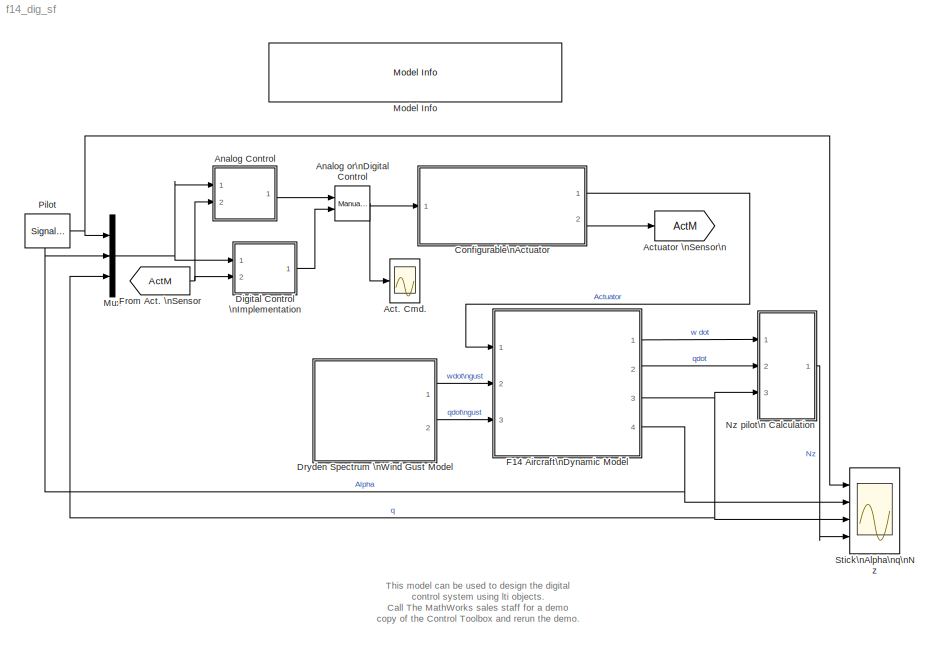
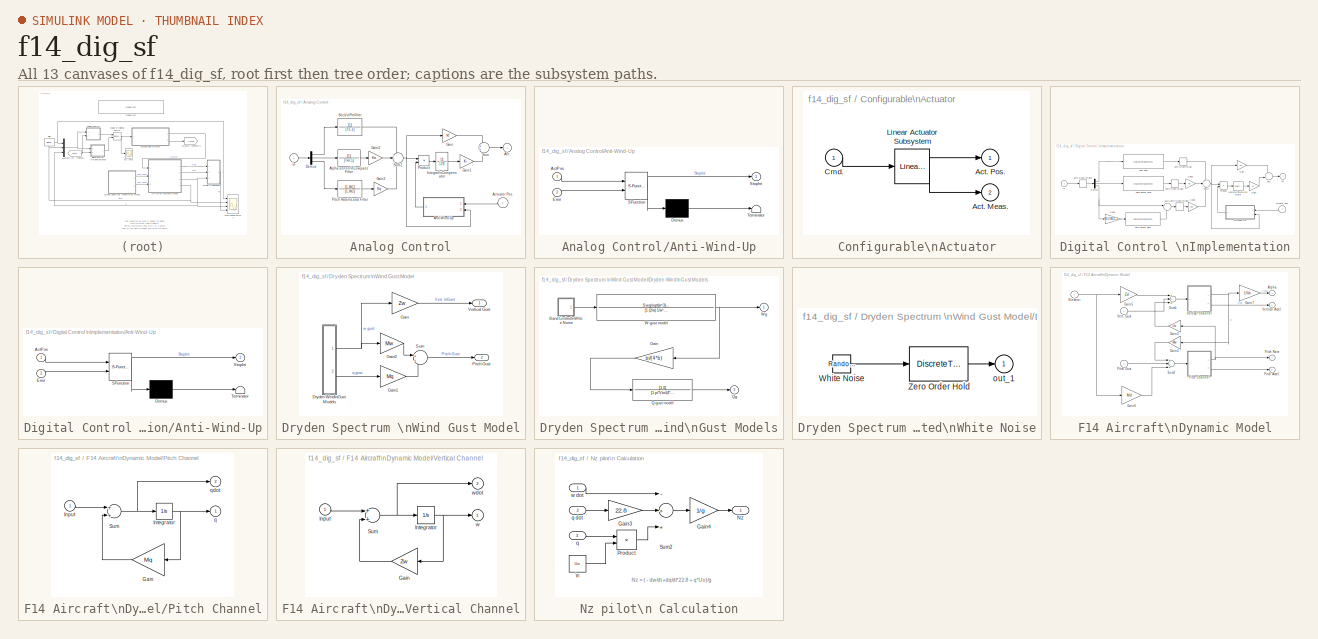
[diagram: thumbnail index - all 13 canvases of the model, root first then tree order]
MODEL f14_dig_sf
KIND model
CONFIG PreLoadFcn = f14dat_digital
BLOCK [Scope] Act. Cmd.
  DataFormat = Array
  LimitDataPoints = off
  NumInputPorts = 1
  Ports = [1]
  TickLabels = on
  TimeRange = 15
  YMax = 2.5
  YMin = -2.5
BLOCK [Goto] Actuator \nSensor\n
  DialogController = Simulink.DDGSource
  GotoTag = ActM
  TagVisibility = local
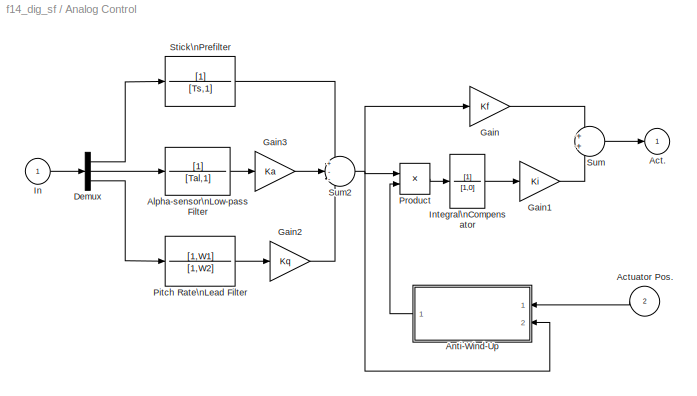
BLOCK [SubSystem] Analog Control
  MinAlgLoopOccurrences = off
  Ports = [2, 1]
  PropExecContextAcrossSSBoundary = on
  RTWSystemCode = Auto
  TreatAsAtomicUnit = off
BLOCK [Outport] Analog Control/Act.
  BusOutputAsStruct = off
  IconDisplay = Port number
  InitialOutput = 0
BLOCK [Inport] Analog Control/Actuator Pos.
  IconDisplay = Port number
  LatchInput = off
  Port = 2
BLOCK [TransferFcn] Analog Control/Alpha-sensor\nLow-pass Filter
  Denominator = [Tal,1]
  MaskIconFrame = on
  MaskIconOpaque = on
  MaskIconRotate = none
  MaskIconUnits = autoscale
BLOCK [SubSystem] Analog Control/Anti-Wind-Up
  MaskDescription = Stateflow diagram
  MaskDisplay = plot(sf('Private','sfblk','xIcon'),sf('Private','sfblk','yIcon'));text(0.5,0,sf('Private', 'sfblk', 'tIcon'),'HorizontalAl','Center','VerticalAl','Bottom');
  MaskIconFrame = off
  MaskIconOpaque = off
  MaskIconRotate = none
  MaskIconUnits = autoscale
  MaskSelfModifiable = on
  MaskType = Stateflow
  MinAlgLoopOccurrences = off
  Ports = [2, 1]
  PropExecContextAcrossSSBoundary = on
  RTWSystemCode = Auto
  TreatAsAtomicUnit = off
BLOCK [Demux] Analog Control/Anti-Wind-Up/ Demux 
  Outputs = 1
  Ports = [1, 1]
BLOCK [S-Function] Analog Control/Anti-Wind-Up/ SFunction 
  FunctionName = sf_sfun
  PortCounts = [2 2]
  Ports = [2, 2]
  Tag = Stateflow S-Function f14_dig_sf 1
BLOCK [Terminator] Analog Control/Anti-Wind-Up/ Terminator 
BLOCK [Inport] Analog Control/Anti-Wind-Up/ActPos
  IconDisplay = Port number
  LatchInput = off
  Port = 1
BLOCK [Inport] Analog Control/Anti-Wind-Up/Error
  IconDisplay = Port number
  LatchInput = off
  Port = 2
BLOCK [Outport] Analog Control/Anti-Wind-Up/StopInt
  BusOutputAsStruct = off
  IconDisplay = Port number
BLOCK [Demux] Analog Control/Demux
  Outputs = 3
  Ports = [1, 3]
BLOCK [Gain] Analog Control/Gain
  Gain = Kf
BLOCK [Gain] Analog Control/Gain1
  Gain = Ki
BLOCK [Gain] Analog Control/Gain2
  Gain = Kq
  MaskIconFrame = on
  MaskIconOpaque = on
  MaskIconRotate = none
  MaskIconUnits = autoscale
BLOCK [Gain] Analog Control/Gain3
  Gain = Ka
  MaskIconFrame = on
  MaskIconOpaque = on
  MaskIconRotate = none
  MaskIconUnits = autoscale
BLOCK [Inport] Analog Control/In
  IconDisplay = Port number
  LatchInput = off
  Port = 1
BLOCK [TransferFcn] Analog Control/Integral\nCompensator
  Denominator = [1,0]
BLOCK [TransferFcn] Analog Control/Pitch Rate\nLead Filter
  Denominator = [1,W2]
  MaskIconFrame = on
  MaskIconOpaque = on
  MaskIconRotate = none
  MaskIconUnits = autoscale
  Numerator = [1,W1]
BLOCK [Product] Analog Control/Product
  Ports = [2, 1]
BLOCK [TransferFcn] Analog Control/Stick\nPrefilter
  Denominator = [Ts,1]
BLOCK [Sum] Analog Control/Sum
  IconShape = round
  Inputs = 2
  Ports = [2, 1]
BLOCK [Sum] Analog Control/Sum2
  IconShape = round
  Inputs = +--
  Ports = [3, 1]
BLOCK [Reference] Analog or\nDigital Control  REF=simulink/Signal\nRouting/Manual Switch
  Ports = [2, 1]
  ShowPortLabels = on
  SourceBlock = simulink/Signal\nRouting/Manual Switch
  SourceType = Manual Switch
  action = 0
  sw = 0
BLOCK [SubSystem] Configurable\nActuator
  BlockChoice = Linear Actuator Subsystem
  MemberBlocks = Linear Actuator Subsystem,Non-Linear Actuator Subsystem
  MinAlgLoopOccurrences = off
  Ports = [1, 2]
  PropExecContextAcrossSSBoundary = on
  RTWSystemCode = Auto
  TemplateBlock = f14actuator/Configurable\nActuator
  TreatAsAtomicUnit = off
BLOCK [Outport] Configurable\nActuator/Act. Meas.
  BusOutputAsStruct = off
  IconDisplay = Port number
  Port = 2
BLOCK [Outport] Configurable\nActuator/Act. Pos.
  BusOutputAsStruct = off
  IconDisplay = Port number
BLOCK [Inport] Configurable\nActuator/Cmd.
  IconDisplay = Port number
  LatchInput = off
  Port = 1
BLOCK [Reference] Configurable\nActuator/Linear Actuator Subsystem  REF=f14actuator/Linear Actuator Subsystem  (lib defined in mdl_813533b40b07)
  Ports = [1, 2]
  ShowPortLabels = on
  SourceBlock = f14actuator/Linear Actuator Subsystem
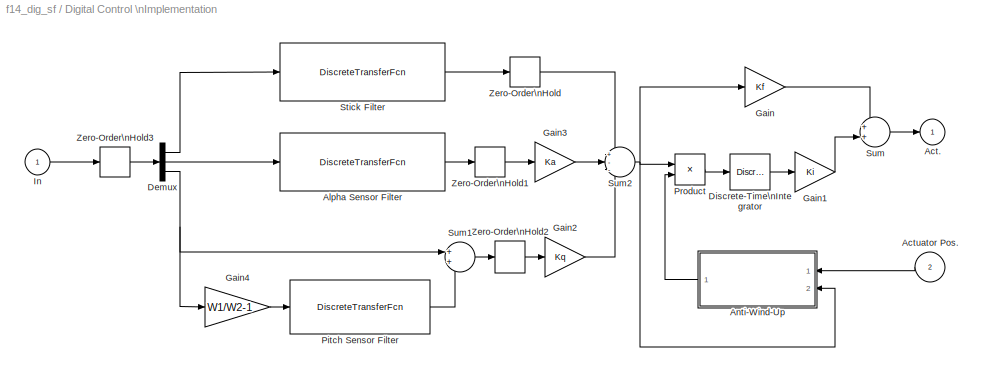
BLOCK [SubSystem] Digital Control \nImplementation
  MinAlgLoopOccurrences = off
  Ports = [2, 1]
  PropExecContextAcrossSSBoundary = on
  RTWSystemCode = Auto
  TreatAsAtomicUnit = off
BLOCK [Outport] Digital Control \nImplementation/Act.
  BusOutputAsStruct = off
  IconDisplay = Port number
  InitialOutput = 0
BLOCK [Inport] Digital Control \nImplementation/Actuator Pos.
  IconDisplay = Port number
  LatchInput = off
  Port = 2
BLOCK [DiscreteTransferFcn] Digital Control \nImplementation/Alpha Sensor Filter
  Denominator = [1 -exp(-deltat1/Tal)]
  Numerator = [1-exp(-deltat1/Tal)]
  SampleTime = deltat1
BLOCK [SubSystem] Digital Control \nImplementation/Anti-Wind-Up
  MaskDescription = Stateflow diagram
  MaskDisplay = plot(sf('Private','sfblk','xIcon'),sf('Private','sfblk','yIcon'));text(0.5,0,sf('Private', 'sfblk', 'tIcon'),'HorizontalAl','Center','VerticalAl','Bottom');
  MaskIconFrame = off
  MaskIconOpaque = off
  MaskIconRotate = none
  MaskIconUnits = autoscale
  MaskSelfModifiable = on
  MaskType = Stateflow
  MinAlgLoopOccurrences = off
  Ports = [2, 1]
  PropExecContextAcrossSSBoundary = on
  RTWSystemCode = Auto
  TreatAsAtomicUnit = off
BLOCK [Demux] Digital Control \nImplementation/Anti-Wind-Up/ Demux 
  Outputs = 1
  Ports = [1, 1]
BLOCK [S-Function] Digital Control \nImplementation/Anti-Wind-Up/ SFunction 
  FunctionName = sf_sfun
  PortCounts = [2 2]
  Ports = [2, 2]
  Tag = Stateflow S-Function f14_dig_sf 2
BLOCK [Terminator] Digital Control \nImplementation/Anti-Wind-Up/ Terminator 
BLOCK [Inport] Digital Control \nImplementation/Anti-Wind-Up/ActPos
  IconDisplay = Port number
  LatchInput = off
  Port = 1
BLOCK [Inport] Digital Control \nImplementation/Anti-Wind-Up/Error
  IconDisplay = Port number
  LatchInput = off
  Port = 2
BLOCK [Outport] Digital Control \nImplementation/Anti-Wind-Up/StopInt
  BusOutputAsStruct = off
  IconDisplay = Port number
BLOCK [Demux] Digital Control \nImplementation/Demux
  Outputs = 3
  Ports = [1, 3]
BLOCK [DiscreteIntegrator] Digital Control \nImplementation/Discrete-Time\nIntegrator
  ExternalReset = none
  ICPrevOutput = DiscIntNeverNeededParam
  ICPrevScaledInput = DiscIntNeverNeededParam
  InitialConditionSource = internal
  IntegratorMethod = Integration: Forward Euler
  Ports = [1, 1]
  SampleTime = deltat
BLOCK [Gain] Digital Control \nImplementation/Gain
  Gain = Kf
BLOCK [Gain] Digital Control \nImplementation/Gain1
  Gain = Ki
BLOCK [Gain] Digital Control \nImplementation/Gain2
  Gain = Kq
  MaskIconFrame = on
  MaskIconOpaque = on
  MaskIconRotate = none
  MaskIconUnits = autoscale
BLOCK [Gain] Digital Control \nImplementation/Gain3
  Gain = Ka
  MaskIconFrame = on
  MaskIconOpaque = on
  MaskIconRotate = none
  MaskIconUnits = autoscale
BLOCK [Gain] Digital Control \nImplementation/Gain4
  Gain = W1/W2-1
  MaskIconFrame = on
  MaskIconOpaque = on
  MaskIconRotate = none
  MaskIconUnits = autoscale
BLOCK [Inport] Digital Control \nImplementation/In
  IconDisplay = Port number
  LatchInput = off
  Port = 1
BLOCK [DiscreteTransferFcn] Digital Control \nImplementation/Pitch Sensor Filter
  Denominator = [1 -exp(-W2*deltat1)]
  Numerator = [1-exp(-W2*deltat1)]
  SampleTime = deltat1
BLOCK [Product] Digital Control \nImplementation/Product
  Ports = [2, 1]
BLOCK [DiscreteTransferFcn] Digital Control \nImplementation/Stick Filter
  Denominator = [1 -exp(-deltat1/Ts)]
  Numerator = [1-exp(-deltat1/Ts)]
  SampleTime = deltat1
BLOCK [Sum] Digital Control \nImplementation/Sum
  IconShape = round
  Inputs = 2
  Ports = [2, 1]
BLOCK [Sum] Digital Control \nImplementation/Sum1
  IconShape = round
  Inputs = 2
  Ports = [2, 1]
BLOCK [Sum] Digital Control \nImplementation/Sum2
  IconShape = round
  Inputs = +--
  Ports = [3, 1]
BLOCK [ZeroOrderHold] Digital Control \nImplementation/Zero-Order\nHold
  SampleTime = deltat
BLOCK [ZeroOrderHold] Digital Control \nImplementation/Zero-Order\nHold1
  SampleTime = deltat
BLOCK [ZeroOrderHold] Digital Control \nImplementation/Zero-Order\nHold2
  SampleTime = deltat
BLOCK [ZeroOrderHold] Digital Control \nImplementation/Zero-Order\nHold3
  SampleTime = deltat1
BLOCK [SubSystem] Dryden Spectrum \nWind Gust Model
  MaskDisplay = image(weatherrgb)
  MaskIconFrame = on
  MaskIconOpaque = on
  MaskIconRotate = none
  MaskIconUnits = autoscale
  MinAlgLoopOccurrences = off
  Ports = [0, 2]
  PropExecContextAcrossSSBoundary = on
  RTWSystemCode = Auto
  TreatAsAtomicUnit = off
BLOCK [SubSystem] Dryden Spectrum \nWind Gust Model/Dryden Wind\nGust Models
  MinAlgLoopOccurrences = off
  Ports = [0, 2]
  PropExecContextAcrossSSBoundary = on
  RTWSystemCode = Auto
  TreatAsAtomicUnit = off
BLOCK [SubSystem] Dryden Spectrum \nWind Gust Model/Dryden Wind\nGust Models/Band Limited\nWhite Noise
  MaskCallbackString = ||
  MaskDescription = White noise for continuous (s-domain) systems.\nBand-limited using zero-order-hold.
  MaskDisplay = plot(t(:),r2(:))
  MaskEnableString = on,on,on
  MaskHelp = Implemented using white noise into Zero Order Hold block. For faster simulation set sample time to highest value possible but in accordance with the fastest dynamics of system.
  MaskIconFrame = on
  MaskIconOpaque = on
  MaskIconRotate = none
  MaskIconUnits = autoscale
  MaskInitialization = r = rand(1,12); r2 = [r(1),r;r,r(12)]; t =[1:13;1:13];
  MaskPromptString = Noise Variance:|Sample Time:|Seed
  MaskStyleString = edit,edit,edit
  MaskTabNameString = ,,
  MaskToolTipString = on,on,on
  MaskTunableValueString = on,on,on
  MaskType = Continuous White Noise.
  MaskValueString = 10|0.1|23341
  MaskVarAliasString = ,,
  MaskVariables = Cov=@1;Ts=@2;seed=@3;
  MaskVisibilityString = on,on,on
  MinAlgLoopOccurrences = off
  Ports = [0, 1]
  PropExecContextAcrossSSBoundary = on
  RTWSystemCode = Auto
  TreatAsAtomicUnit = off
BLOCK [RandomNumber] Dryden Spectrum \nWind Gust Model/Dryden Wind\nGust Models/Band Limited\nWhite Noise/White Noise
  SampleTime = Ts
  Seed = seed
BLOCK [DiscreteTransferFcn] Dryden Spectrum \nWind Gust Model/Dryden Wind\nGust Models/Band Limited\nWhite Noise/Zero Order Hold
  Denominator = [sqrt(Ts)]
  Numerator = [sqrt(Cov)]
  SampleTime = Ts
BLOCK [Outport] Dryden Spectrum \nWind Gust Model/Dryden Wind\nGust Models/Band Limited\nWhite Noise/out_1
  BusOutputAsStruct = off
  IconDisplay = Port number
  InitialOutput = 0
BLOCK [Gain] Dryden Spectrum \nWind Gust Model/Dryden Wind\nGust Models/Gain
  Gain = pi/(4*b)
BLOCK [TransferFcn] Dryden Spectrum \nWind Gust Model/Dryden Wind\nGust Models/Q-gust model
  Denominator = [1 pi*Vto/(4*b)]
  Numerator = [1 0]
BLOCK [Outport] Dryden Spectrum \nWind Gust Model/Dryden Wind\nGust Models/Qg
  BusOutputAsStruct = off
  IconDisplay = Port number
  InitialOutput = 0
  Port = 2
BLOCK [TransferFcn] Dryden Spectrum \nWind Gust Model/Dryden Wind\nGust Models/W-gust model
  Denominator = [1 (2/a) 1/a^2]
  Numerator = Swg/sqrt(a^3)*[sqrt(3)*a,1]
BLOCK [Outport] Dryden Spectrum \nWind Gust Model/Dryden Wind\nGust Models/Wg
  BusOutputAsStruct = off
  IconDisplay = Port number
  InitialOutput = 0
BLOCK [Gain] Dryden Spectrum \nWind Gust Model/Gain
  Gain = Zw
BLOCK [Gain] Dryden Spectrum \nWind Gust Model/Gain1
  Gain = Mq
BLOCK [Gain] Dryden Spectrum \nWind Gust Model/Gain2
  Gain = Mw
BLOCK [Outport] Dryden Spectrum \nWind Gust Model/Pitch Gust
  BusOutputAsStruct = off
  IconDisplay = Port number
  Port = 2
BLOCK [Sum] Dryden Spectrum \nWind Gust Model/Sum
  IconShape = round
  Ports = [2, 1]
BLOCK [Outport] Dryden Spectrum \nWind Gust Model/Vertical Gust
  BusOutputAsStruct = off
  IconDisplay = Port number
BLOCK [SubSystem] F14 Aircraft\nDynamic Model
  MaskDisplay = image(rgb)
  MaskIconFrame = on
  MaskIconOpaque = on
  MaskIconRotate = none
  MaskIconUnits = autoscale
  MinAlgLoopOccurrences = off
  Ports = [3, 4]
  PropExecContextAcrossSSBoundary = on
  RTWSystemCode = Auto
  TreatAsAtomicUnit = off
BLOCK [Outport] F14 Aircraft\nDynamic Model/Alpha
  BusOutputAsStruct = off
  IconDisplay = Port number
  InitialOutput = 0
  Port = 4
BLOCK [Inport] F14 Aircraft\nDynamic Model/Elevator
  IconDisplay = Port number
  LatchInput = off
  Port = 1
BLOCK [Gain] F14 Aircraft\nDynamic Model/Gain3
  Gain = Uo
  MaskIconFrame = on
  MaskIconOpaque = on
  MaskIconRotate = none
  MaskIconUnits = autoscale
BLOCK [Gain] F14 Aircraft\nDynamic Model/Gain4
  Gain = Mw
  MaskIconFrame = on
  MaskIconOpaque = on
  MaskIconRotate = none
  MaskIconUnits = autoscale
BLOCK [Gain] F14 Aircraft\nDynamic Model/Gain5
  Gain = Zd
BLOCK [Gain] F14 Aircraft\nDynamic Model/Gain6
  Gain = Md
BLOCK [Gain] F14 Aircraft\nDynamic Model/Gain7
  Gain = 1/Uo
BLOCK [Outport] F14 Aircraft\nDynamic Model/Pitch Accel.
  BusOutputAsStruct = off
  IconDisplay = Port number
  InitialOutput = 0
  Port = 2
BLOCK [SubSystem] F14 Aircraft\nDynamic Model/Pitch Channel
  MinAlgLoopOccurrences = off
  Ports = [1, 2]
  PropExecContextAcrossSSBoundary = on
  RTWSystemCode = Auto
  TreatAsAtomicUnit = off
BLOCK [Gain] F14 Aircraft\nDynamic Model/Pitch Channel/Gain
  Gain = Mq
BLOCK [Inport] F14 Aircraft\nDynamic Model/Pitch Channel/Input
  IconDisplay = Port number
  LatchInput = off
  Port = 1
BLOCK [Integrator] F14 Aircraft\nDynamic Model/Pitch Channel/Integrator
  Ports = [1, 1]
BLOCK [Sum] F14 Aircraft\nDynamic Model/Pitch Channel/Sum
  Ports = [2, 1]
BLOCK [Outport] F14 Aircraft\nDynamic Model/Pitch Channel/q
  BusOutputAsStruct = off
  IconDisplay = Port number
  InitialOutput = 0
BLOCK [Outport] F14 Aircraft\nDynamic Model/Pitch Channel/qdot
  BusOutputAsStruct = off
  IconDisplay = Port number
  InitialOutput = 0
  Port = 2
BLOCK [Inport] F14 Aircraft\nDynamic Model/Pitch Gust
  IconDisplay = Port number
  LatchInput = off
  Port = 3
BLOCK [Outport] F14 Aircraft\nDynamic Model/Pitch Rate
  BusOutputAsStruct = off
  IconDisplay = Port number
  InitialOutput = 0
  Port = 3
BLOCK [Sum] F14 Aircraft\nDynamic Model/Sum1
  Inputs = +-+
  Ports = [3, 1]
BLOCK [Sum] F14 Aircraft\nDynamic Model/Sum2
  Inputs = +-+
  Ports = [3, 1]
BLOCK [Inport] F14 Aircraft\nDynamic Model/Vert. Gust
  IconDisplay = Port number
  LatchInput = off
  Port = 2
BLOCK [Outport] F14 Aircraft\nDynamic Model/Vertical Accel.
  BusOutputAsStruct = off
  IconDisplay = Port number
  InitialOutput = 0
BLOCK [SubSystem] F14 Aircraft\nDynamic Model/Vertical Channel
  MinAlgLoopOccurrences = off
  Ports = [1, 2]
  PropExecContextAcrossSSBoundary = on
  RTWSystemCode = Auto
  TreatAsAtomicUnit = off
BLOCK [Gain] F14 Aircraft\nDynamic Model/Vertical Channel/Gain
  Gain = Zw
BLOCK [Inport] F14 Aircraft\nDynamic Model/Vertical Channel/Input
  IconDisplay = Port number
  LatchInput = off
  Port = 1
BLOCK [Integrator] F14 Aircraft\nDynamic Model/Vertical Channel/Integrator
  Ports = [1, 1]
BLOCK [Sum] F14 Aircraft\nDynamic Model/Vertical Channel/Sum
  Ports = [2, 1]
BLOCK [Outport] F14 Aircraft\nDynamic Model/Vertical Channel/w
  BusOutputAsStruct = off
  IconDisplay = Port number
  InitialOutput = 0
BLOCK [Outport] F14 Aircraft\nDynamic Model/Vertical Channel/wdot
  BusOutputAsStruct = off
  IconDisplay = Port number
  InitialOutput = 0
  Port = 2
BLOCK [From] From Act. \nSensor
  DialogController = Simulink.DDGSource
  GotoTag = ActM
BLOCK [Reference] Model Info  REF=simulink/Model-Wide\nUtilities/Model Info
  BlockCM = none
  DisplayStringWithTags = F14 High Angle of Attack \nDigital Flight Control System
  Frame = off
  HorizontalTextAlignment = Center
  InitialBlockCM = none
  LeftAlignmentValue = 0.5
  MaskDisplayString = F14 High Angle of Attack \\nDigital Flight Control System
  Ports = []
  ShowPortLabels = on
  SourceBlock = simulink/Model-Wide\nUtilities/Model Info
  SourceBlockDiagram = f14_dig_sf
  SourceType = CMBlock
  TagMaxNumber = 20
BLOCK [Mux] Mux
  Inputs = 3
  Ports = [3, 1]
BLOCK [SubSystem] Nz pilot\n Calculation
  MinAlgLoopOccurrences = off
  Ports = [3, 1]
  PropExecContextAcrossSSBoundary = on
  RTWSystemCode = Auto
  TreatAsAtomicUnit = off
BLOCK [Gain] Nz pilot\n Calculation/Gain3
  Gain = 22.8
BLOCK [Gain] Nz pilot\n Calculation/Gain4
  Gain = 1/g
BLOCK [Outport] Nz pilot\n Calculation/Nz
  BusOutputAsStruct = off
  IconDisplay = Port number
  InitialOutput = 0
BLOCK [Product] Nz pilot\n Calculation/Product
  Ports = [2, 1]
BLOCK [Sum] Nz pilot\n Calculation/Sum2
  Inputs = -++
  Ports = [3, 1]
BLOCK [Constant] Nz pilot\n Calculation/\n
  Value = Uo
BLOCK [Inport] Nz pilot\n Calculation/q
  IconDisplay = Port number
  LatchInput = off
  Port = 3
BLOCK [Inport] Nz pilot\n Calculation/q dot
  IconDisplay = Port number
  LatchInput = off
  Port = 2
BLOCK [Inport] Nz pilot\n Calculation/w dot
  IconDisplay = Port number
  LatchInput = off
  Port = 1
BLOCK [SignalGenerator] Pilot
  Frequency = 0.500000
  Ports = [0, 1]
  Units = rad/sec
  WaveForm = square
BLOCK [Scope] Stick\nAlpha\nq\nNz
  DataFormat = Array
  LimitDataPoints = off
  NumInputPorts = 4
  Ports = [4]
  SaveName = ScopeData1
  TickLabels = on
  TimeRange = 15
  YMax = 1~1.5~3~15
  YMin = -1~-1.5~-3~-15
ANNOTATION (root): This model can be used to design the digital\ncontrol system using lti objects.\nCall The MathWorks sales staff for a demo\ncopy of the Control Toolbox and rerun the demo.
ANNOTATION Nz pilot\n Calculation: Nz = ( - dw/dt +dq/dt*22.8 + q*Uo)/g
LINE Analog Control/Actuator Pos.:1 -> Analog Control/Anti-Wind-Up:1
LINE Analog Control/Alpha-sensor\nLow-pass Filter:1 -> Analog Control/Gain3:1
LINE Analog Control/Anti-Wind-Up/ Demux :1 -> Analog Control/Anti-Wind-Up/ Terminator :1
LINE Analog Control/Anti-Wind-Up/ SFunction :1 -> Analog Control/Anti-Wind-Up/ Demux :1
LINE Analog Control/Anti-Wind-Up/ SFunction :2 -> Analog Control/Anti-Wind-Up/StopInt:1
LINE Analog Control/Anti-Wind-Up/ActPos:1 -> Analog Control/Anti-Wind-Up/ SFunction :1
LINE Analog Control/Anti-Wind-Up/Error:1 -> Analog Control/Anti-Wind-Up/ SFunction :2
LINE Analog Control/Anti-Wind-Up:1 -> Analog Control/Product:2
LINE Analog Control/Demux:1 -> Analog Control/Stick\nPrefilter:1
LINE Analog Control/Demux:2 -> Analog Control/Alpha-sensor\nLow-pass Filter:1
LINE Analog Control/Demux:3 -> Analog Control/Pitch Rate\nLead Filter:1
LINE Analog Control/Gain1:1 -> Analog Control/Sum:2
LINE Analog Control/Gain2:1 -> Analog Control/Sum2:3
LINE Analog Control/Gain3:1 -> Analog Control/Sum2:2
LINE Analog Control/Gain:1 -> Analog Control/Sum:1
LINE Analog Control/In:1 -> Analog Control/Demux:1
LINE Analog Control/Integral\nCompensator:1 -> Analog Control/Gain1:1
LINE Analog Control/Pitch Rate\nLead Filter:1 -> Analog Control/Gain2:1
LINE Analog Control/Product:1 -> Analog Control/Integral\nCompensator:1
LINE Analog Control/Stick\nPrefilter:1 -> Analog Control/Sum2:1
NET Analog Control/Sum2:1 -> Analog Control/Anti-Wind-Up:2, Analog Control/Gain:1, Analog Control/Product:1
LINE Analog Control/Sum:1 -> Analog Control/Act.:1
LINE Analog Control:1 -> Analog or\nDigital Control:1
NET Analog or\nDigital Control:1 -> Act. Cmd.:1, Configurable\nActuator:1
LINE Configurable\nActuator/Cmd.:1 -> Configurable\nActuator/Linear Actuator Subsystem:1
LINE Configurable\nActuator/Linear Actuator Subsystem:1 -> Configurable\nActuator/Act. Pos.:1
LINE Configurable\nActuator/Linear Actuator Subsystem:2 -> Configurable\nActuator/Act. Meas.:1
LINE Configurable\nActuator:1 -> F14 Aircraft\nDynamic Model:1
LINE Configurable\nActuator:2 -> Actuator \nSensor\n:1
LINE Digital Control \nImplementation/Actuator Pos.:1 -> Digital Control \nImplementation/Anti-Wind-Up:1
LINE Digital Control \nImplementation/Alpha Sensor Filter:1 -> Digital Control \nImplementation/Zero-Order\nHold1:1
LINE Digital Control \nImplementation/Anti-Wind-Up/ Demux :1 -> Digital Control \nImplementation/Anti-Wind-Up/ Terminator :1
LINE Digital Control \nImplementation/Anti-Wind-Up/ SFunction :1 -> Digital Control \nImplementation/Anti-Wind-Up/ Demux :1
LINE Digital Control \nImplementation/Anti-Wind-Up/ SFunction :2 -> Digital Control \nImplementation/Anti-Wind-Up/StopInt:1
LINE Digital Control \nImplementation/Anti-Wind-Up/ActPos:1 -> Digital Control \nImplementation/Anti-Wind-Up/ SFunction :1
LINE Digital Control \nImplementation/Anti-Wind-Up/Error:1 -> Digital Control \nImplementation/Anti-Wind-Up/ SFunction :2
LINE Digital Control \nImplementation/Anti-Wind-Up:1 -> Digital Control \nImplementation/Product:2
LINE Digital Control \nImplementation/Demux:1 -> Digital Control \nImplementation/Stick Filter:1
LINE Digital Control \nImplementation/Demux:2 -> Digital Control \nImplementation/Alpha Sensor Filter:1
NET Digital Control \nImplementation/Demux:3 -> Digital Control \nImplementation/Gain4:1, Digital Control \nImplementation/Sum1:1
LINE Digital Control \nImplementation/Discrete-Time\nIntegrator:1 -> Digital Control \nImplementation/Gain1:1
LINE Digital Control \nImplementation/Gain1:1 -> Digital Control \nImplementation/Sum:2
LINE Digital Control \nImplementation/Gain2:1 -> Digital Control \nImplementation/Sum2:3
LINE Digital Control \nImplementation/Gain3:1 -> Digital Control \nImplementation/Sum2:2
LINE Digital Control \nImplementation/Gain4:1 -> Digital Control \nImplementation/Pitch Sensor Filter:1
LINE Digital Control \nImplementation/Gain:1 -> Digital Control \nImplementation/Sum:1
LINE Digital Control \nImplementation/In:1 -> Digital Control \nImplementation/Zero-Order\nHold3:1
LINE Digital Control \nImplementation/Pitch Sensor Filter:1 -> Digital Control \nImplementation/Sum1:2
LINE Digital Control \nImplementation/Product:1 -> Digital Control \nImplementation/Discrete-Time\nIntegrator:1
LINE Digital Control \nImplementation/Stick Filter:1 -> Digital Control \nImplementation/Zero-Order\nHold:1
LINE Digital Control \nImplementation/Sum1:1 -> Digital Control \nImplementation/Zero-Order\nHold2:1
NET Digital Control \nImplementation/Sum2:1 -> Digital Control \nImplementation/Anti-Wind-Up:2, Digital Control \nImplementation/Gain:1, Digital Control \nImplementation/Product:1
LINE Digital Control \nImplementation/Sum:1 -> Digital Control \nImplementation/Act.:1
LINE Digital Control \nImplementation/Zero-Order\nHold1:1 -> Digital Control \nImplementation/Gain3:1
LINE Digital Control \nImplementation/Zero-Order\nHold2:1 -> Digital Control \nImplementation/Gain2:1
LINE Digital Control \nImplementation/Zero-Order\nHold3:1 -> Digital Control \nImplementation/Demux:1
LINE Digital Control \nImplementation/Zero-Order\nHold:1 -> Digital Control \nImplementation/Sum2:1
LINE Digital Control \nImplementation:1 -> Analog or\nDigital Control:2
LINE Dryden Spectrum \nWind Gust Model/Dryden Wind\nGust Models/Band Limited\nWhite Noise/White Noise:1 -> Dryden Spectrum \nWind Gust Model/Dryden Wind\nGust Models/Band Limited\nWhite Noise/Zero Order Hold:1
LINE Dryden Spectrum \nWind Gust Model/Dryden Wind\nGust Models/Band Limited\nWhite Noise/Zero Order Hold:1 -> Dryden Spectrum \nWind Gust Model/Dryden Wind\nGust Models/Band Limited\nWhite Noise/out_1:1
LINE Dryden Spectrum \nWind Gust Model/Dryden Wind\nGust Models/Band Limited\nWhite Noise:1 -> Dryden Spectrum \nWind Gust Model/Dryden Wind\nGust Models/W-gust model:1
LINE Dryden Spectrum \nWind Gust Model/Dryden Wind\nGust Models/Gain:1 -> Dryden Spectrum \nWind Gust Model/Dryden Wind\nGust Models/Q-gust model:1
LINE Dryden Spectrum \nWind Gust Model/Dryden Wind\nGust Models/Q-gust model:1 -> Dryden Spectrum \nWind Gust Model/Dryden Wind\nGust Models/Qg:1
NET Dryden Spectrum \nWind Gust Model/Dryden Wind\nGust Models/W-gust model:1 -> Dryden Spectrum \nWind Gust Model/Dryden Wind\nGust Models/Gain:1, Dryden Spectrum \nWind Gust Model/Dryden Wind\nGust Models/Wg:1
NET Dryden Spectrum \nWind Gust Model/Dryden Wind\nGust Models:1 -> Dryden Spectrum \nWind Gust Model/Gain2:1, Dryden Spectrum \nWind Gust Model/Gain:1
LINE Dryden Spectrum \nWind Gust Model/Dryden Wind\nGust Models:2 -> Dryden Spectrum \nWind Gust Model/Gain1:1
LINE Dryden Spectrum \nWind Gust Model/Gain1:1 -> Dryden Spectrum \nWind Gust Model/Sum:2
LINE Dryden Spectrum \nWind Gust Model/Gain2:1 -> Dryden Spectrum \nWind Gust Model/Sum:1
LINE Dryden Spectrum \nWind Gust Model/Gain:1 -> Dryden Spectrum \nWind Gust Model/Vertical Gust:1
LINE Dryden Spectrum \nWind Gust Model/Sum:1 -> Dryden Spectrum \nWind Gust Model/Pitch Gust:1
LINE Dryden Spectrum \nWind Gust Model:1 -> F14 Aircraft\nDynamic Model:2
LINE Dryden Spectrum \nWind Gust Model:2 -> F14 Aircraft\nDynamic Model:3
NET F14 Aircraft\nDynamic Model/Elevator:1 -> F14 Aircraft\nDynamic Model/Gain5:1, F14 Aircraft\nDynamic Model/Gain6:1
LINE F14 Aircraft\nDynamic Model/Gain3:1 -> F14 Aircraft\nDynamic Model/Sum1:3
LINE F14 Aircraft\nDynamic Model/Gain4:1 -> F14 Aircraft\nDynamic Model/Sum2:1
LINE F14 Aircraft\nDynamic Model/Gain5:1 -> F14 Aircraft\nDynamic Model/Sum1:1
LINE F14 Aircraft\nDynamic Model/Gain6:1 -> F14 Aircraft\nDynamic Model/Sum2:3
LINE F14 Aircraft\nDynamic Model/Gain7:1 -> F14 Aircraft\nDynamic Model/Alpha:1
LINE F14 Aircraft\nDynamic Model/Pitch Channel/Gain:1 -> F14 Aircraft\nDynamic Model/Pitch Channel/Sum:2
LINE F14 Aircraft\nDynamic Model/Pitch Channel/Input:1 -> F14 Aircraft\nDynamic Model/Pitch Channel/Sum:1
NET F14 Aircraft\nDynamic Model/Pitch Channel/Integrator:1 -> F14 Aircraft\nDynamic Model/Pitch Channel/Gain:1, F14 Aircraft\nDynamic Model/Pitch Channel/q:1
NET F14 Aircraft\nDynamic Model/Pitch Channel/Sum:1 -> F14 Aircraft\nDynamic Model/Pitch Channel/Integrator:1, F14 Aircraft\nDynamic Model/Pitch Channel/qdot:1
NET F14 Aircraft\nDynamic Model/Pitch Channel:1 -> F14 Aircraft\nDynamic Model/Gain3:1, F14 Aircraft\nDynamic Model/Pitch Rate:1
LINE F14 Aircraft\nDynamic Model/Pitch Channel:2 -> F14 Aircraft\nDynamic Model/Pitch Accel.:1
LINE F14 Aircraft\nDynamic Model/Pitch Gust:1 -> F14 Aircraft\nDynamic Model/Sum2:2
LINE F14 Aircraft\nDynamic Model/Sum1:1 -> F14 Aircraft\nDynamic Model/Vertical Channel:1
LINE F14 Aircraft\nDynamic Model/Sum2:1 -> F14 Aircraft\nDynamic Model/Pitch Channel:1
LINE F14 Aircraft\nDynamic Model/Vert. Gust:1 -> F14 Aircraft\nDynamic Model/Sum1:2
LINE F14 Aircraft\nDynamic Model/Vertical Channel/Gain:1 -> F14 Aircraft\nDynamic Model/Vertical Channel/Sum:2
LINE F14 Aircraft\nDynamic Model/Vertical Channel/Input:1 -> F14 Aircraft\nDynamic Model/Vertical Channel/Sum:1
NET F14 Aircraft\nDynamic Model/Vertical Channel/Integrator:1 -> F14 Aircraft\nDynamic Model/Vertical Channel/Gain:1, F14 Aircraft\nDynamic Model/Vertical Channel/w:1
NET F14 Aircraft\nDynamic Model/Vertical Channel/Sum:1 -> F14 Aircraft\nDynamic Model/Vertical Channel/Integrator:1, F14 Aircraft\nDynamic Model/Vertical Channel/wdot:1
NET F14 Aircraft\nDynamic Model/Vertical Channel:1 -> F14 Aircraft\nDynamic Model/Gain4:1, F14 Aircraft\nDynamic Model/Gain7:1
LINE F14 Aircraft\nDynamic Model/Vertical Channel:2 -> F14 Aircraft\nDynamic Model/Vertical Accel.:1
LINE F14 Aircraft\nDynamic Model:1 -> Nz pilot\n Calculation:1
LINE F14 Aircraft\nDynamic Model:2 -> Nz pilot\n Calculation:2
NET F14 Aircraft\nDynamic Model:3 -> Mux:3, Nz pilot\n Calculation:3, Stick\nAlpha\nq\nNz:3
NET F14 Aircraft\nDynamic Model:4 -> Mux:2, Stick\nAlpha\nq\nNz:2
NET From Act. \nSensor:1 -> Analog Control:2, Digital Control \nImplementation:2
NET Mux:1 -> Analog Control:1, Digital Control \nImplementation:1
LINE Nz pilot\n Calculation/Gain3:1 -> Nz pilot\n Calculation/Sum2:2
LINE Nz pilot\n Calculation/Gain4:1 -> Nz pilot\n Calculation/Nz:1
LINE Nz pilot\n Calculation/Product:1 -> Nz pilot\n Calculation/Sum2:3
LINE Nz pilot\n Calculation/Sum2:1 -> Nz pilot\n Calculation/Gain4:1
LINE Nz pilot\n Calculation/\n:1 -> Nz pilot\n Calculation/Product:2
LINE Nz pilot\n Calculation/q dot:1 -> Nz pilot\n Calculation/Gain3:1
LINE Nz pilot\n Calculation/q:1 -> Nz pilot\n Calculation/Product:1
LINE Nz pilot\n Calculation/w dot:1 -> Nz pilot\n Calculation/Sum2:1
LINE Nz pilot\n Calculation:1 -> Stick\nAlpha\nq\nNz:4
NET Pilot:1 -> Mux:1, Stick\nAlpha\nq\nNz:1
note: NET lines group one-source signal fan-out (src -> all destinations, sorted); 1:1 wires keep LINE
CHART Analog Control/Anti-Wind-Up states=2 transitions=3
  STATE_LABEL 'Integrate\\nen:StopInt=1;'
  STATE_LABEL 'Stop_Integrating\\nen: StopInt=0;'
CHART Digital Control \nImplementation/Anti-Wind-Up states=2 transitions=3
  STATE_LABEL 'Integrate\\nen:StopInt=1;'
  STATE_LABEL 'Stop_Integrating\\nen: StopInt=0;'
